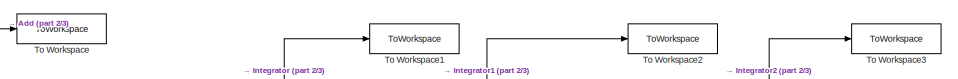
[diagram: root canvas - part 1/3, top center region]
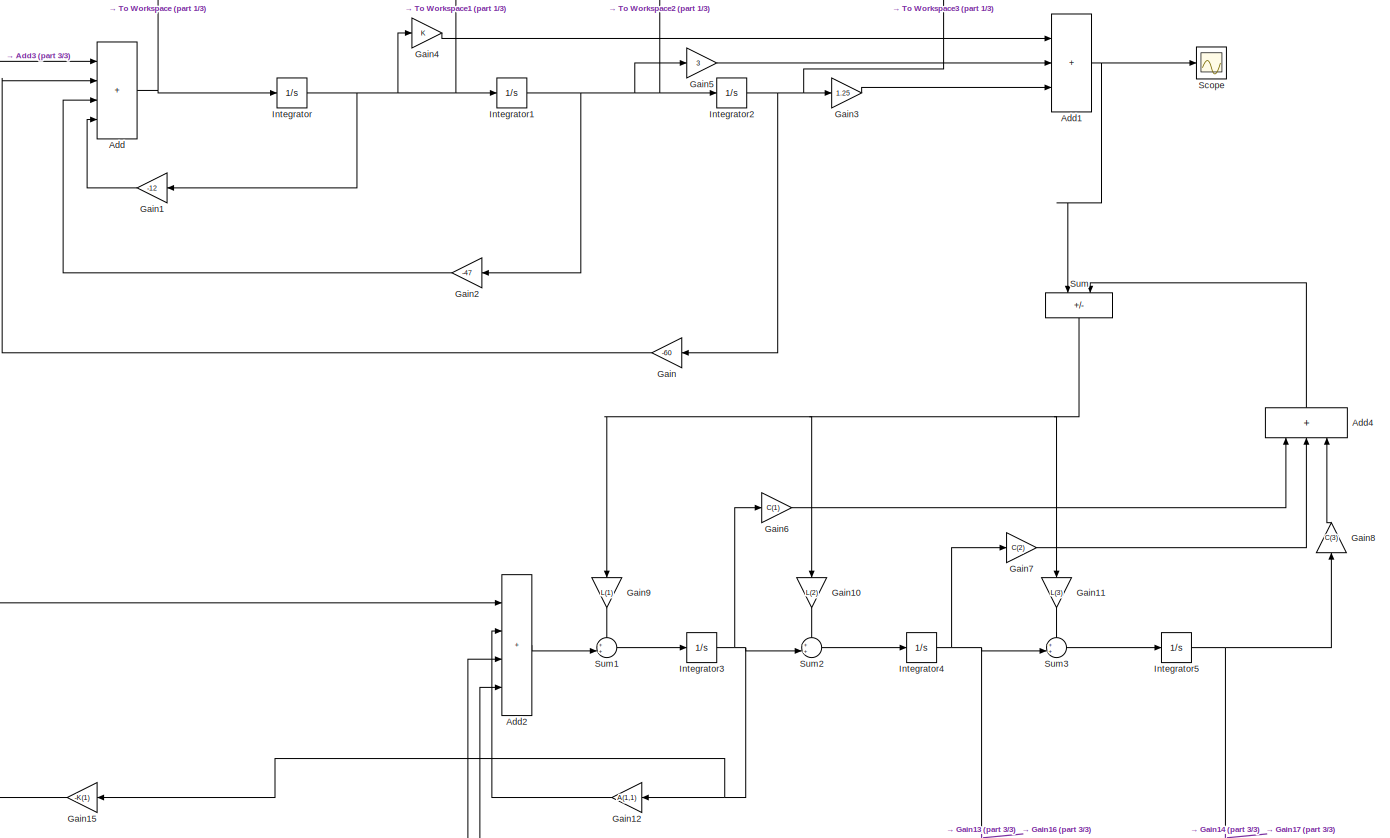
[diagram: root canvas - part 2/3, full width, middle band]
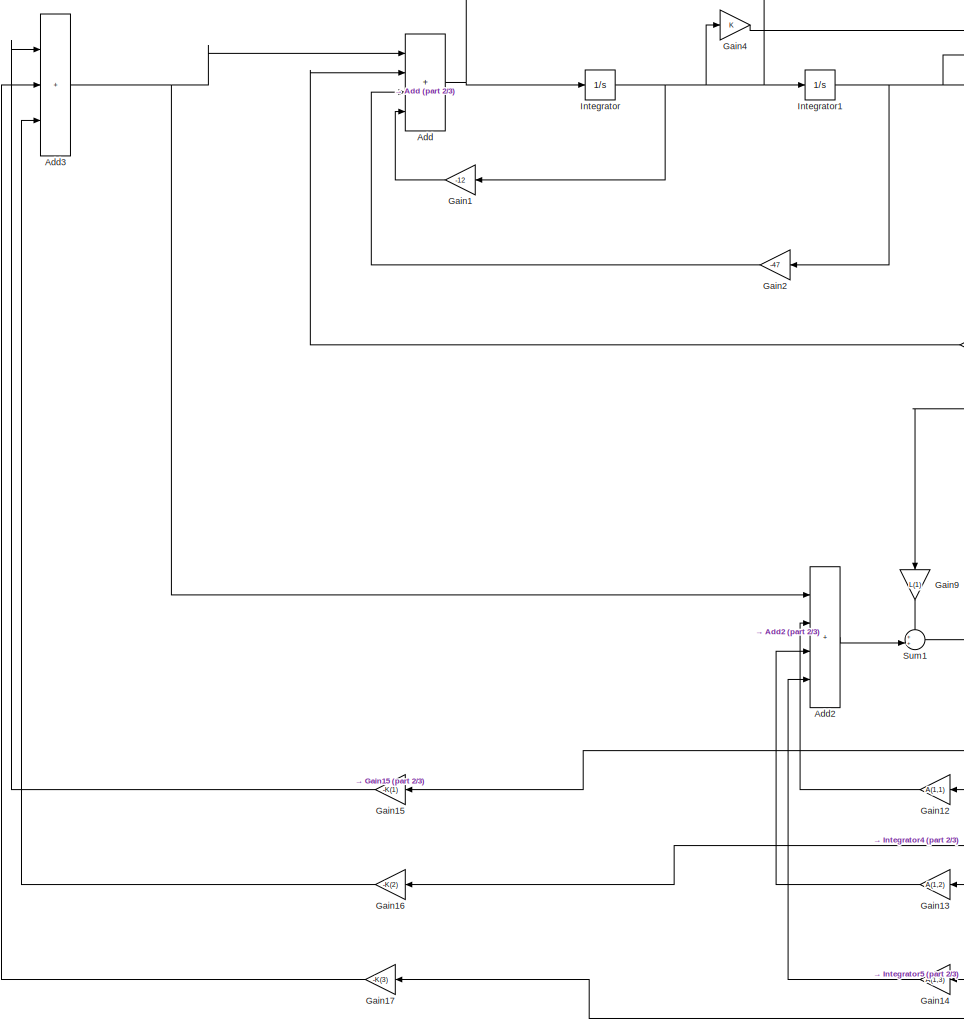
[diagram: root canvas - part 3/3, left side, full height]
MODEL slx_8a91699de87a
KIND model
CONFIG AbsTol = auto
CONFIG EnableMultiTasking = off
CONFIG FixedStep = auto
CONFIG MaxStep = auto
CONFIG MinStep = auto
CONFIG RelTol = 1e-3
CONFIG SampleTimeConstraint = Unconstrained
CONFIG SolverName = VariableStepAuto
CONFIG StartTime = 0.0
CONFIG StopTime = 10.0
BLOCK [Sum] Add
  IconShape = rectangular
  Inputs = ++++
BLOCK [Sum] Add1
  IconShape = rectangular
  Inputs = +++
BLOCK [Sum] Add2
  IconShape = rectangular
  Inputs = ++++
BLOCK [Sum] Add3
  IconShape = rectangular
  Inputs = +++
BLOCK [Sum] Add4
  IconShape = rectangular
  Inputs = +++
  NameLocation = right
BLOCK [Gain] Gain
  Gain = -60
  NameLocation = top
BLOCK [Gain] Gain1
  Gain = -12
  NameLocation = top
BLOCK [Gain] Gain10
  Gain = L(2)
  NameLocation = left
BLOCK [Gain] Gain11
  Gain = L(3)
  NameLocation = left
BLOCK [Gain] Gain12
  Gain = A(1,1)
  NameLocation = top
BLOCK [Gain] Gain13
  Gain = A(1,2)
  NameLocation = top
BLOCK [Gain] Gain14
  Gain = A(1,3)
  NameLocation = top
BLOCK [Gain] Gain15
  Gain = -K(1)
  NameLocation = top
BLOCK [Gain] Gain16
  Gain = -K(2)
  NameLocation = top
BLOCK [Gain] Gain17
  Gain = -K(3)
  NameLocation = top
BLOCK [Gain] Gain2
  Gain = -47
  NameLocation = top
BLOCK [Gain] Gain3
  Gain = 1.25
BLOCK [Gain] Gain4
BLOCK [Gain] Gain5
  Gain = 3
BLOCK [Gain] Gain6
  Gain = C(1)
BLOCK [Gain] Gain7
  Gain = C(2)
BLOCK [Gain] Gain8
  Gain = C(3)
  NameLocation = right
BLOCK [Gain] Gain9
  Gain = L(1)
  NameLocation = left
BLOCK [Integrator] Integrator
  InitialCondition = 5
BLOCK [Integrator] Integrator1
  InitialCondition = 6
BLOCK [Integrator] Integrator2
  InitialCondition = 1
BLOCK [Integrator] Integrator3
  InitialCondition = 10
BLOCK [Integrator] Integrator4
  InitialCondition = 20
BLOCK [Integrator] Integrator5
  InitialCondition = 30
BLOCK [Scope] Scope
  Floating = off
  NumInputPorts = 1
  ScopeSpecificationString = Simulink.scopes.TimeScopeBlockCfg('CurrentConfiguration', extmgr.ConfigurationSet(extmgr.Configuration('Core','General UI',true),extmgr.Configuration('Core','Source UI',true),extmgr.Configuration('Sources','WiredSimulink',true),extmgr.Configuration('Visuals','Time Domain',true,'SerializedDisplays',{struct('MinYLimReal','-438.28807','MaxYLimReal','233.64227','YLabelReal','','MinYLimMag',' 0.00000',...<+1366ch>
BLOCK [Sum] Sum
  IconShape = rectangular
  Inputs = +-
  NameLocation = left
BLOCK [Sum] Sum1
  Inputs = ++|
BLOCK [Sum] Sum2
  Inputs = ++|
BLOCK [Sum] Sum3
  Inputs = ++|
BLOCK [ToWorkspace] To Workspace
  FixptAsFi = on
  MaxDataPoints = inf
  SampleTime = -1
  SaveFormat = Timeseries
  VariableName = eu
BLOCK [ToWorkspace] To Workspace1
  FixptAsFi = on
  MaxDataPoints = inf
  SampleTime = -1
  SaveFormat = Timeseries
  VariableName = ex1
BLOCK [ToWorkspace] To Workspace2
  FixptAsFi = on
  MaxDataPoints = inf
  SampleTime = -1
  SaveFormat = Timeseries
  VariableName = ex2
BLOCK [ToWorkspace] To Workspace3
  FixptAsFi = on
  MaxDataPoints = inf
  SampleTime = -1
  SaveFormat = Timeseries
  VariableName = ex3
NET Add1:1 -> Scope:1, Sum:1
LINE Add2:1 -> Sum1:2
NET Add3:1 -> Add2:1, Add:1
LINE Add4:1 -> Sum:2
NET Add:1 -> Integrator:1, To Workspace:1
LINE Gain10:1 -> Sum2:1
LINE Gain11:1 -> Sum3:1
LINE Gain12:1 -> Add2:2
LINE Gain13:1 -> Add2:3
LINE Gain14:1 -> Add2:4
LINE Gain15:1 -> Add3:1
LINE Gain16:1 -> Add3:3
LINE Gain17:1 -> Add3:2
LINE Gain1:1 -> Add:4
LINE Gain2:1 -> Add:3
LINE Gain3:1 -> Add1:3
LINE Gain4:1 -> Add1:1
LINE Gain5:1 -> Add1:2
LINE Gain6:1 -> Add4:1
LINE Gain7:1 -> Add4:2
LINE Gain8:1 -> Add4:3
LINE Gain9:1 -> Sum1:1
LINE Gain:1 -> Add:2
NET Integrator1:1 -> Gain2:1, Gain5:1, Integrator2:1, To Workspace2:1
NET Integrator2:1 -> Gain3:1, Gain:1, To Workspace3:1
NET Integrator3:1 -> Gain12:1, Gain15:1, Gain6:1, Sum2:2
NET Integrator4:1 -> Gain13:1, Gain16:1, Gain7:1, Sum3:2
NET Integrator5:1 -> Gain14:1, Gain17:1, Gain8:1
NET Integrator:1 -> Gain1:1, Gain4:1, Integrator1:1, To Workspace1:1
LINE Sum1:1 -> Integrator3:1
LINE Sum2:1 -> Integrator4:1
LINE Sum3:1 -> Integrator5:1
NET Sum:1 -> Gain10:1, Gain11:1, Gain9:1
note: NET lines group one-source signal fan-out (src -> all destinations, sorted); 1:1 wires keep LINE
